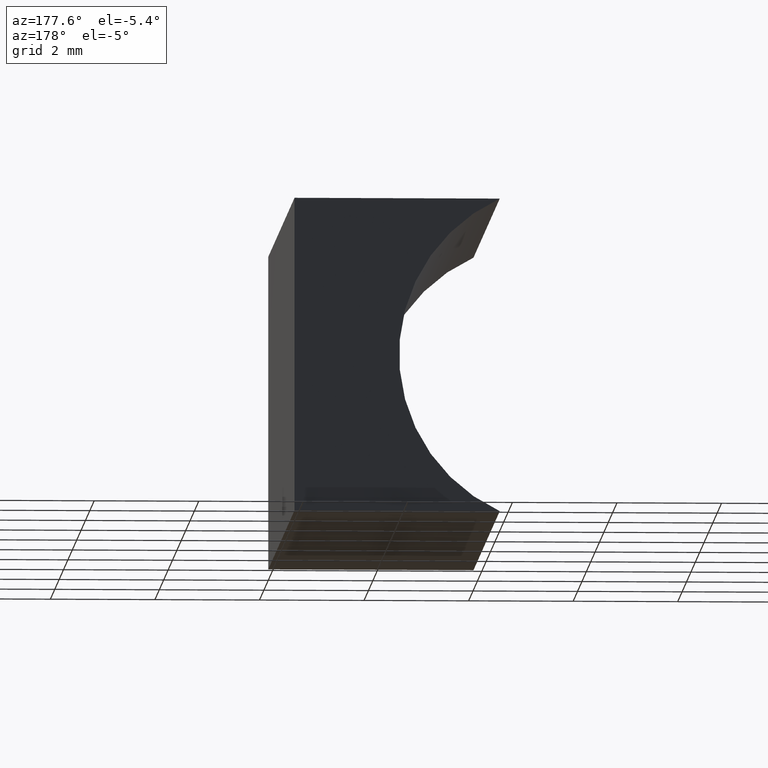
[diagram: clean part render]
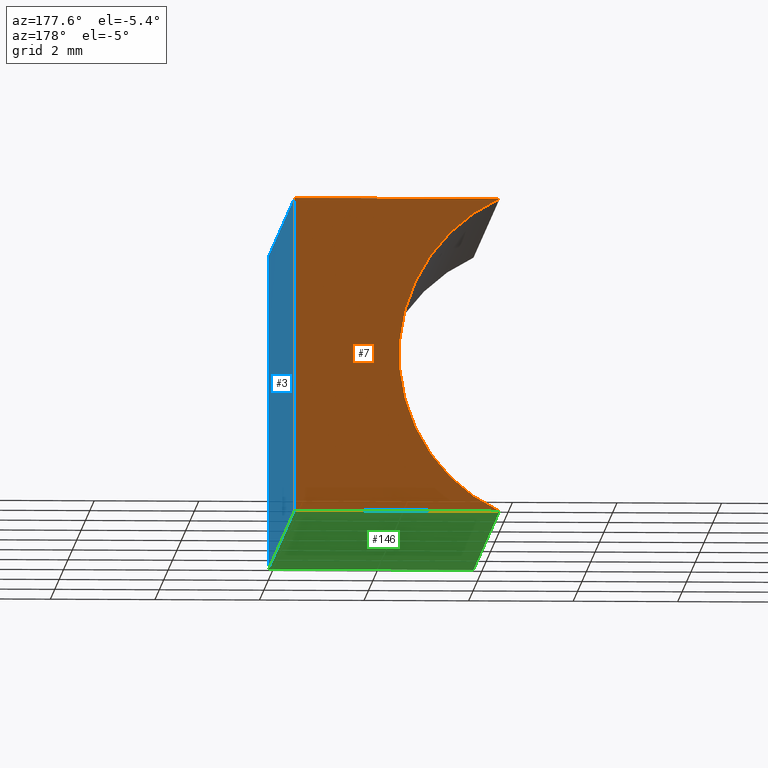
[diagram: same view with three faces highlighted in distinct colors, each labeled with its STEP entity id]
A machine part, auxiliary view with three faces highlighted in distinct colors.
Their STEP definitions:

[orange] entity #7 — the highlighted planar face has unit normal (0, 1, 0).
#1 = VERTEX_POINT ( 'NONE', #23 ) ;
#7 = ADVANCED_FACE ( 'NONE', ( #138 ), #142, .T. ) ;
#15 = VERTEX_POINT ( 'NONE', #170 ) ;
#23 = CARTESIAN_POINT ( 'NONE',  ( 0.0000000000000000000, 12.00000000000000000, 0.0000000000000000000 ) ) ;
#32 = DIRECTION ( 'NONE',  ( -0.0000000000000000000, -0.0000000000000000000, -1.000000000000000000 ) ) ;
#34 = CARTESIAN_POINT ( 'NONE',  ( -5.299999999999998900, 12.00000000000000000, 2.999999999999998200 ) ) ;
#40 = VECTOR ( 'NONE', #194, 1000.000000000000000 ) ;
#61 = VERTEX_POINT ( 'NONE', #202 ) ;
#65 = ORIENTED_EDGE ( 'NONE', *, *, #164, .T. ) ;
#71 = VECTOR ( 'NONE', #32, 1000.000000000000000 ) ;
#78 = CARTESIAN_POINT ( 'NONE',  ( 0.0000000000000000000, 12.00000000000000000, 0.0000000000000000000 ) ) ;
#81 = CARTESIAN_POINT ( 'NONE',  ( 0.0000000000000000000, 12.00000000000000000, 6.000000000000000000 ) ) ;
#91 = DIRECTION ( 'NONE',  ( 0.0000000000000000000, 0.0000000000000000000, 1.000000000000000000 ) ) ;
#94 = EDGE_LOOP ( 'NONE', ( #105, #135, #155, #65 ) ) ;
#95 = DIRECTION ( 'NONE',  ( -0.0000000000000000000, -1.000000000000000000, -0.0000000000000000000 ) ) ;
#98 = CARTESIAN_POINT ( 'NONE',  ( -5.299999999999998900, 12.00000000000000000, 2.999999999999998200 ) ) ;
#101 = AXIS2_PLACEMENT_3D ( 'NONE', #34, #156, #201 ) ;
#105 = ORIENTED_EDGE ( 'NONE', *, *, #182, .T. ) ;
#108 = CARTESIAN_POINT ( 'NONE',  ( 0.0000000000000000000, 12.00000000000000000, 6.000000000000000000 ) ) ;
#110 = AXIS2_PLACEMENT_3D ( 'NONE', #98, #95, #91 ) ;
#111 = CARTESIAN_POINT ( 'NONE',  ( 0.0000000000000000000, 12.00000000000000000, 0.0000000000000000000 ) ) ;
#112 = VECTOR ( 'NONE', #119, 1000.000000000000000 ) ;
#119 = DIRECTION ( 'NONE',  ( 1.000000000000000000, -0.0000000000000000000, 4.419421722985211700E-016 ) ) ;
#127 = LINE ( 'NONE', #81, #112 ) ;
#130 = VERTEX_POINT ( 'NONE', #108 ) ;
#131 = EDGE_CURVE ( 'NONE', #15, #61, #152, .T. ) ;
#132 = LINE ( 'NONE', #111, #71 ) ;
#135 = ORIENTED_EDGE ( 'NONE', *, *, #131, .T. ) ;
#138 = FACE_OUTER_BOUND ( 'NONE', #94, .T. ) ;
#142 = PLANE ( 'NONE',  #101 ) ;
#152 = CIRCLE ( 'NONE', #110, 3.299999999999998000 ) ;
#155 = ORIENTED_EDGE ( 'NONE', *, *, #172, .T. ) ;
#156 = DIRECTION ( 'NONE',  ( 0.0000000000000000000, 1.000000000000000000, 0.0000000000000000000 ) ) ;
#164 = EDGE_CURVE ( 'NONE', #130, #1, #132, .T. ) ;
#170 = CARTESIAN_POINT ( 'NONE',  ( -3.925227291513245600, 12.00000000000000000, 4.336808689942017700E-016 ) ) ;
#172 = EDGE_CURVE ( 'NONE', #61, #130, #127, .T. ) ;
#181 = LINE ( 'NONE', #78, #40 ) ;
#182 = EDGE_CURVE ( 'NONE', #1, #15, #181, .T. ) ;
#194 = DIRECTION ( 'NONE',  ( -1.000000000000000000, 0.0000000000000000000, 0.0000000000000000000 ) ) ;
#201 = DIRECTION ( 'NONE',  ( 0.0000000000000000000, -0.0000000000000000000, 1.000000000000000000 ) ) ;
#202 = CARTESIAN_POINT ( 'NONE',  ( -3.925227291513251800, 12.00000000000000000, 5.999999999999998200 ) ) ;

[blue] entity #3 — the highlighted planar face has unit normal (-1, 0, 0).
#1 = VERTEX_POINT ( 'NONE', #23 ) ;
#3 = ADVANCED_FACE ( 'NONE', ( #85 ), #22, .F. ) ;
#8 = DIRECTION ( 'NONE',  ( -0.0000000000000000000, -1.000000000000000000, -0.0000000000000000000 ) ) ;
#13 = DIRECTION ( 'NONE',  ( -0.0000000000000000000, -1.000000000000000000, -0.0000000000000000000 ) ) ;
#20 = VECTOR ( 'NONE', #8, 1000.000000000000000 ) ;
#22 = PLANE ( 'NONE',  #60 ) ;
#23 = CARTESIAN_POINT ( 'NONE',  ( 0.0000000000000000000, 12.00000000000000000, 0.0000000000000000000 ) ) ;
#30 = EDGE_LOOP ( 'NONE', ( #70, #151, #48, #124 ) ) ;
#31 = DIRECTION ( 'NONE',  ( -0.0000000000000000000, -0.0000000000000000000, -1.000000000000000000 ) ) ;
#32 = DIRECTION ( 'NONE',  ( -0.0000000000000000000, -0.0000000000000000000, -1.000000000000000000 ) ) ;
#38 = CARTESIAN_POINT ( 'NONE',  ( 0.0000000000000000000, 12.00000000000000000, 6.000000000000000000 ) ) ;
#47 = EDGE_CURVE ( 'NONE', #130, #188, #122, .T. ) ;
#48 = ORIENTED_EDGE ( 'NONE', *, *, #164, .F. ) ;
#60 = AXIS2_PLACEMENT_3D ( 'NONE', #191, #104, #125 ) ;
#70 = ORIENTED_EDGE ( 'NONE', *, *, #73, .T. ) ;
#71 = VECTOR ( 'NONE', #32, 1000.000000000000000 ) ;
#73 = EDGE_CURVE ( 'NONE', #188, #87, #117, .T. ) ;
#85 = FACE_OUTER_BOUND ( 'NONE', #30, .T. ) ;
#87 = VERTEX_POINT ( 'NONE', #147 ) ;
#93 = LINE ( 'NONE', #133, #20 ) ;
#104 = DIRECTION ( 'NONE',  ( -1.000000000000000000, 0.0000000000000000000, 0.0000000000000000000 ) ) ;
#108 = CARTESIAN_POINT ( 'NONE',  ( 0.0000000000000000000, 12.00000000000000000, 6.000000000000000000 ) ) ;
#111 = CARTESIAN_POINT ( 'NONE',  ( 0.0000000000000000000, 12.00000000000000000, 0.0000000000000000000 ) ) ;
#117 = LINE ( 'NONE', #190, #185 ) ;
#122 = LINE ( 'NONE', #38, #177 ) ;
#124 = ORIENTED_EDGE ( 'NONE', *, *, #47, .T. ) ;
#125 = DIRECTION ( 'NONE',  ( 0.0000000000000000000, 0.0000000000000000000, 1.000000000000000000 ) ) ;
#130 = VERTEX_POINT ( 'NONE', #108 ) ;
#132 = LINE ( 'NONE', #111, #71 ) ;
#133 = CARTESIAN_POINT ( 'NONE',  ( 0.0000000000000000000, 12.00000000000000000, 0.0000000000000000000 ) ) ;
#139 = EDGE_CURVE ( 'NONE', #1, #87, #93, .T. ) ;
#147 = CARTESIAN_POINT ( 'NONE',  ( 0.0000000000000000000, 0.0000000000000000000, 0.0000000000000000000 ) ) ;
#151 = ORIENTED_EDGE ( 'NONE', *, *, #139, .F. ) ;
#164 = EDGE_CURVE ( 'NONE', #130, #1, #132, .T. ) ;
#177 = VECTOR ( 'NONE', #13, 1000.000000000000000 ) ;
#180 = CARTESIAN_POINT ( 'NONE',  ( 0.0000000000000000000, 0.0000000000000000000, 6.000000000000000000 ) ) ;
#185 = VECTOR ( 'NONE', #31, 1000.000000000000000 ) ;
#188 = VERTEX_POINT ( 'NONE', #180 ) ;
#190 = CARTESIAN_POINT ( 'NONE',  ( 0.0000000000000000000, 0.0000000000000000000, 0.0000000000000000000 ) ) ;
#191 = CARTESIAN_POINT ( 'NONE',  ( 0.0000000000000000000, 12.00000000000000000, 0.0000000000000000000 ) ) ;

[green] entity #146 — the highlighted planar face has unit normal (0, -0, 1).
#1 = VERTEX_POINT ( 'NONE', #23 ) ;
#4 = ORIENTED_EDGE ( 'NONE', *, *, #148, .F. ) ;
#5 = PLANE ( 'NONE',  #64 ) ;
#8 = DIRECTION ( 'NONE',  ( -0.0000000000000000000, -1.000000000000000000, -0.0000000000000000000 ) ) ;
#10 = DIRECTION ( 'NONE',  ( -0.0000000000000000000, -1.000000000000000000, -0.0000000000000000000 ) ) ;
#15 = VERTEX_POINT ( 'NONE', #170 ) ;
#17 = DIRECTION ( 'NONE',  ( 0.0000000000000000000, -0.0000000000000000000, 1.000000000000000000 ) ) ;
#20 = VECTOR ( 'NONE', #8, 1000.000000000000000 ) ;
#23 = CARTESIAN_POINT ( 'NONE',  ( 0.0000000000000000000, 12.00000000000000000, 0.0000000000000000000 ) ) ;
#25 = VECTOR ( 'NONE', #46, 1000.000000000000000 ) ;
#29 = VERTEX_POINT ( 'NONE', #200 ) ;
#33 = EDGE_LOOP ( 'NONE', ( #62, #4, #103, #54 ) ) ;
#40 = VECTOR ( 'NONE', #194, 1000.000000000000000 ) ;
#46 = DIRECTION ( 'NONE',  ( -1.000000000000000000, 0.0000000000000000000, 0.0000000000000000000 ) ) ;
#51 = CARTESIAN_POINT ( 'NONE',  ( -3.925227291513245600, 12.00000000000000000, 4.336808689942017700E-016 ) ) ;
#54 = ORIENTED_EDGE ( 'NONE', *, *, #139, .T. ) ;
#62 = ORIENTED_EDGE ( 'NONE', *, *, #121, .T. ) ;
#64 = AXIS2_PLACEMENT_3D ( 'NONE', #76, #17, #176 ) ;
#69 = LINE ( 'NONE', #175, #25 ) ;
#74 = FACE_OUTER_BOUND ( 'NONE', #33, .T. ) ;
#76 = CARTESIAN_POINT ( 'NONE',  ( 0.0000000000000000000, 12.00000000000000000, 0.0000000000000000000 ) ) ;
#78 = CARTESIAN_POINT ( 'NONE',  ( 0.0000000000000000000, 12.00000000000000000, 0.0000000000000000000 ) ) ;
#87 = VERTEX_POINT ( 'NONE', #147 ) ;
#93 = LINE ( 'NONE', #133, #20 ) ;
#103 = ORIENTED_EDGE ( 'NONE', *, *, #182, .F. ) ;
#118 = VECTOR ( 'NONE', #10, 1000.000000000000000 ) ;
#121 = EDGE_CURVE ( 'NONE', #87, #29, #69, .T. ) ;
#123 = LINE ( 'NONE', #51, #118 ) ;
#133 = CARTESIAN_POINT ( 'NONE',  ( 0.0000000000000000000, 12.00000000000000000, 0.0000000000000000000 ) ) ;
#139 = EDGE_CURVE ( 'NONE', #1, #87, #93, .T. ) ;
#146 = ADVANCED_FACE ( 'NONE', ( #74 ), #5, .F. ) ;
#147 = CARTESIAN_POINT ( 'NONE',  ( 0.0000000000000000000, 0.0000000000000000000, 0.0000000000000000000 ) ) ;
#148 = EDGE_CURVE ( 'NONE', #15, #29, #123, .T. ) ;
#170 = CARTESIAN_POINT ( 'NONE',  ( -3.925227291513245600, 12.00000000000000000, 4.336808689942017700E-016 ) ) ;
#175 = CARTESIAN_POINT ( 'NONE',  ( 0.0000000000000000000, 0.0000000000000000000, 0.0000000000000000000 ) ) ;
#176 = DIRECTION ( 'NONE',  ( 1.000000000000000000, 0.0000000000000000000, -0.0000000000000000000 ) ) ;
#181 = LINE ( 'NONE', #78, #40 ) ;
#182 = EDGE_CURVE ( 'NONE', #1, #15, #181, .T. ) ;
#194 = DIRECTION ( 'NONE',  ( -1.000000000000000000, 0.0000000000000000000, 0.0000000000000000000 ) ) ;
#200 = CARTESIAN_POINT ( 'NONE',  ( -3.925227291513245600, 0.0000000000000000000, 4.336808689942017700E-016 ) ) ;